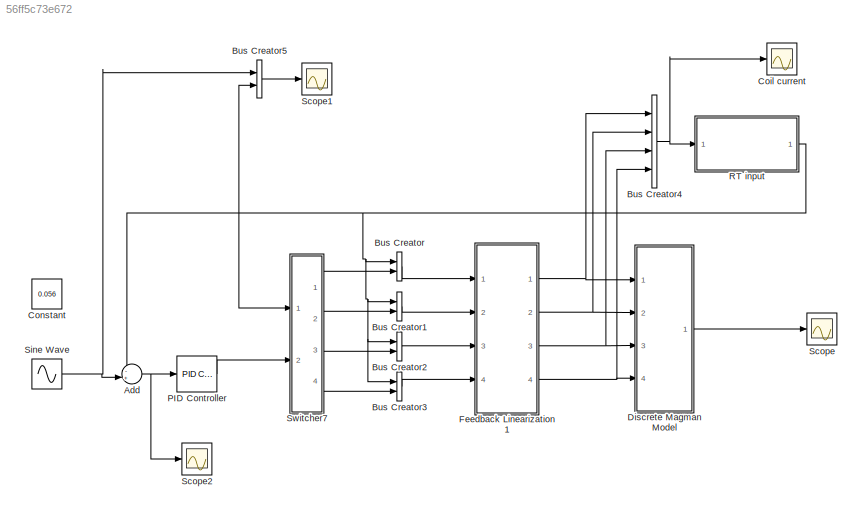
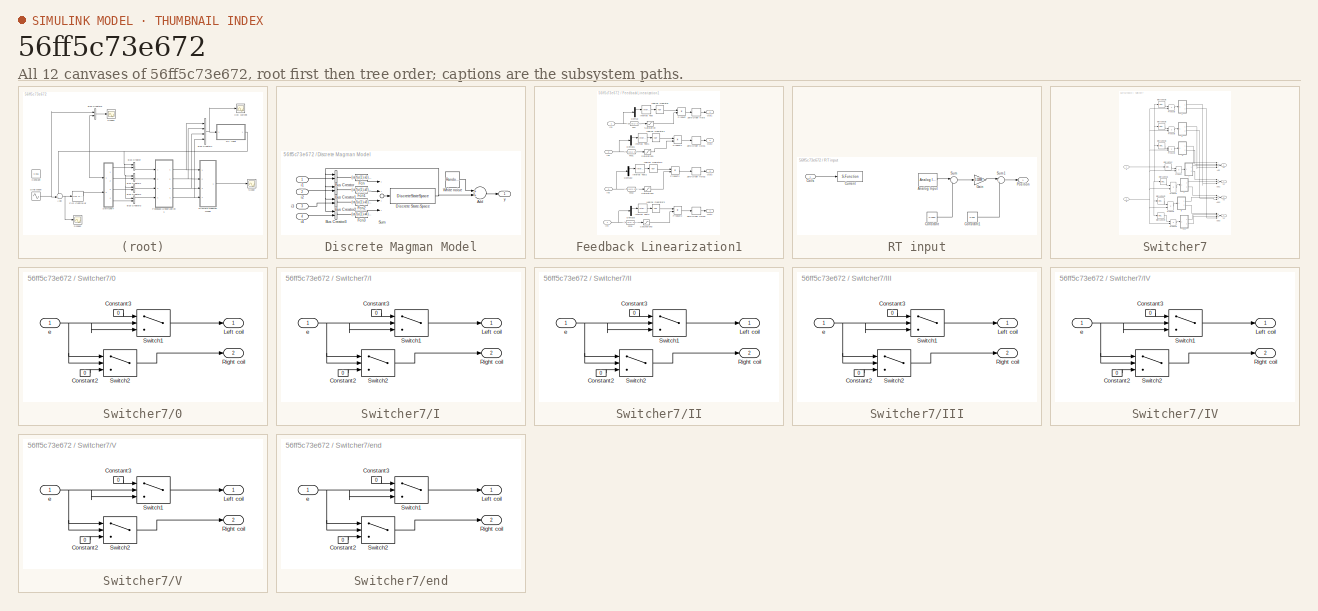
[diagram: thumbnail index - all 12 canvases of the model, root first then tree order]
MODEL slx_56ff5c73e672
KIND model
CONFIG AbsTol = auto
CONFIG EnableMultiTasking = off
CONFIG FixedStep = auto
CONFIG MaxStep = auto
CONFIG MinStep = auto
CONFIG RelTol = 1e-3
CONFIG SampleTimeConstraint = Unconstrained
CONFIG Solver = VariableStepAuto
CONFIG SolverName = VariableStepAuto
CONFIG StartTime = 0.0
CONFIG StopTime = 60
BLOCK [Sum] Add
  IconShape = round
  InputSameDT = off
  Inputs = -+|
  OutDataTypeStr = Inherit: Inherit via internal rule
  Ports = [2, 1]
  SaturateOnIntegerOverflow = off
BLOCK [BusCreator] Bus Creator
  DisplayOption = bar
  InheritFromInputs = on
  Inputs = 2
  Ports = [2, 1]
BLOCK [BusCreator] Bus Creator1
  DisplayOption = bar
  InheritFromInputs = on
  Inputs = 2
  Ports = [2, 1]
BLOCK [BusCreator] Bus Creator2
  DisplayOption = bar
  InheritFromInputs = on
  Inputs = 2
  Ports = [2, 1]
BLOCK [BusCreator] Bus Creator3
  DisplayOption = bar
  InheritFromInputs = on
  Inputs = 2
  Ports = [2, 1]
BLOCK [BusCreator] Bus Creator4
  DisplayOption = bar
  InheritFromInputs = on
  Inputs = 4
  Ports = [4, 1]
BLOCK [BusCreator] Bus Creator5
  DisplayOption = bar
  InheritFromInputs = on
  Inputs = 2
  Ports = [2, 1]
BLOCK [Scope] Coil current
  NumInputPorts = 1
  Ports = [1]
  ScopeSpecificationString = Simulink.scopes.TimeScopeBlockCfg('CurrentConfiguration', extmgr.ConfigurationSet(extmgr.Configuration('Core','General UI',true),extmgr.Configuration('Core','Source UI',true),extmgr.Configuration('Sources','WiredSimulink',true,'DataLoggingVariableName','ScopeData2'),extmgr.Configuration('Visuals','Time Domain',true,'SerializedDisplays',{struct('MinYLimReal','-0.05625','MaxYLimReal','0.50625','YLab...<+1455ch>
BLOCK [Constant] Constant
  Value = 0.056
BLOCK [SubSystem] Discrete Magman Model
  Ports = [4, 1]
  RequestExecContextInheritance = off
  Variant = off
BLOCK [Sum] Discrete Magman Model/Add
  InputSameDT = off
  OutDataTypeStr = Inherit: Inherit via internal rule
  Ports = [2, 1]
  SaturateOnIntegerOverflow = off
BLOCK [BusCreator] Discrete Magman Model/Bus Creator
  DisplayOption = bar
  InheritFromInputs = on
  Inputs = 2
  Ports = [2, 1]
BLOCK [BusCreator] Discrete Magman Model/Bus Creator1
  DisplayOption = bar
  InheritFromInputs = on
  Inputs = 2
  Ports = [2, 1]
BLOCK [BusCreator] Discrete Magman Model/Bus Creator2
  DisplayOption = bar
  InheritFromInputs = on
  Inputs = 2
  Ports = [2, 1]
BLOCK [BusCreator] Discrete Magman Model/Bus Creator3
  DisplayOption = bar
  InheritFromInputs = on
  Inputs = 2
  Ports = [2, 1]
BLOCK [DiscreteStateSpace] Discrete Magman Model/Discrete State-Space
  A = Ad
  B = Bd
  C = Cd
  D = Dd
  SampleTime = h
BLOCK [Fcn] Discrete Magman Model/Fcn
  Expr = (-a*(u(1)-x1)/(((u(1)-x1)^2+b)^3))*(u(2))
BLOCK [Fcn] Discrete Magman Model/Fcn1
  Expr = (-a*(u(1)-x2)/(((u(1)-x2)^2+b)^3))*(u(2))
BLOCK [Fcn] Discrete Magman Model/Fcn2
  Expr = (-a*(u(1)-x3)/(((u(1)-x3)^2+b)^3))*(u(2))
BLOCK [Fcn] Discrete Magman Model/Fcn3
  Expr = (-a*(u(1)-x4)/(((u(1)-x4)^2+b)^3))*(u(2))
BLOCK [Sum] Discrete Magman Model/Sum
  InputSameDT = off
  Inputs = ++++
  OutDataTypeStr = Inherit: Inherit via internal rule
  Ports = [4, 1]
  SaturateOnIntegerOverflow = off
BLOCK [Reference] Discrete Magman Model/White noise  REF=dspsrcs4/Random
Source
  Ports = [0, 1]
  SourceBlock = dspsrcs4/Random\nSource
  SourceType = Random Source
  UserDataPersistent = on
BLOCK [Inport] Discrete Magman Model/i1
  IconDisplay = Port number
BLOCK [Inport] Discrete Magman Model/i2
  IconDisplay = Port number
  Port = 2
BLOCK [Inport] Discrete Magman Model/i3
  IconDisplay = Port number
  Port = 3
BLOCK [Inport] Discrete Magman Model/i4
  IconDisplay = Port number
  Port = 4
BLOCK [Outport] Discrete Magman Model/y
  IconDisplay = Port number
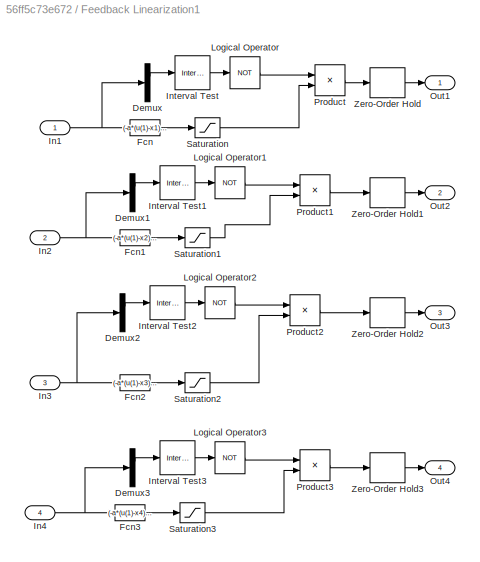
BLOCK [SubSystem] Feedback Linearization1
  Ports = [4, 4]
  RequestExecContextInheritance = off
  Variant = off
BLOCK [Demux] Feedback Linearization1/Demux
  DisplayOption = bar
  Outputs = 2
  Ports = [1, 2]
BLOCK [Demux] Feedback Linearization1/Demux1
  DisplayOption = bar
  Outputs = 2
  Ports = [1, 2]
BLOCK [Demux] Feedback Linearization1/Demux2
  DisplayOption = bar
  Outputs = 2
  Ports = [1, 2]
BLOCK [Demux] Feedback Linearization1/Demux3
  DisplayOption = bar
  Outputs = 2
  Ports = [1, 2]
BLOCK [Fcn] Feedback Linearization1/Fcn
  Expr = (-a*(u(1)-x1)/(((u(1)-x1)^2+b)^3))^(-1)*(u(2))
BLOCK [Fcn] Feedback Linearization1/Fcn1
  Expr = (-a*(u(1)-x2)/(((u(1)-x2)^2+b)^3))^(-1)*(u(2))
BLOCK [Fcn] Feedback Linearization1/Fcn2
  Expr = (-a*(u(1)-x3)/(((u(1)-x3)^2+b)^3))^(-1)*(u(2))
BLOCK [Fcn] Feedback Linearization1/Fcn3
  Expr = (-a*(u(1)-x4)/(((u(1)-x4)^2+b)^3))^(-1)*(u(2))
BLOCK [Inport] Feedback Linearization1/In1
  IconDisplay = Port number
BLOCK [Inport] Feedback Linearization1/In2
  IconDisplay = Port number
  Port = 2
BLOCK [Inport] Feedback Linearization1/In3
  IconDisplay = Port number
  Port = 3
BLOCK [Inport] Feedback Linearization1/In4
  IconDisplay = Port number
  Port = 4
BLOCK [Reference] Feedback Linearization1/Interval Test  REF=simulink/Logic and Bit
Operations/Interval Test
  Ports = [1, 1]
  SourceBlock = simulink/Logic and Bit\nOperations/Interval Test
  SourceType = Interval Test
BLOCK [Reference] Feedback Linearization1/Interval Test1  REF=simulink/Logic and Bit
Operations/Interval Test
  Ports = [1, 1]
  SourceBlock = simulink/Logic and Bit\nOperations/Interval Test
  SourceType = Interval Test
BLOCK [Reference] Feedback Linearization1/Interval Test2  REF=simulink/Logic and Bit
Operations/Interval Test
  Ports = [1, 1]
  SourceBlock = simulink/Logic and Bit\nOperations/Interval Test
  SourceType = Interval Test
BLOCK [Reference] Feedback Linearization1/Interval Test3  REF=simulink/Logic and Bit
Operations/Interval Test
  Ports = [1, 1]
  SourceBlock = simulink/Logic and Bit\nOperations/Interval Test
  SourceType = Interval Test
BLOCK [Logic] Feedback Linearization1/Logical Operator
  AllPortsSameDT = off
  Operator = NOT
  OutDataTypeStr = boolean
  Ports = [1, 1]
BLOCK [Logic] Feedback Linearization1/Logical Operator1
  AllPortsSameDT = off
  Operator = NOT
  OutDataTypeStr = boolean
  Ports = [1, 1]
BLOCK [Logic] Feedback Linearization1/Logical Operator2
  AllPortsSameDT = off
  Operator = NOT
  OutDataTypeStr = boolean
  Ports = [1, 1]
BLOCK [Logic] Feedback Linearization1/Logical Operator3
  AllPortsSameDT = off
  Operator = NOT
  OutDataTypeStr = boolean
  Ports = [1, 1]
BLOCK [Outport] Feedback Linearization1/Out1
  IconDisplay = Port number
BLOCK [Outport] Feedback Linearization1/Out2
  IconDisplay = Port number
  Port = 2
BLOCK [Outport] Feedback Linearization1/Out3
  IconDisplay = Port number
  Port = 3
BLOCK [Outport] Feedback Linearization1/Out4
  IconDisplay = Port number
  Port = 4
BLOCK [Product] Feedback Linearization1/Product
  InputSameDT = off
  OutDataTypeStr = Inherit: Inherit via internal rule
  Ports = [2, 1]
  RndMeth = Floor
  SaturateOnIntegerOverflow = off
BLOCK [Product] Feedback Linearization1/Product1
  InputSameDT = off
  OutDataTypeStr = Inherit: Inherit via internal rule
  Ports = [2, 1]
  RndMeth = Floor
  SaturateOnIntegerOverflow = off
BLOCK [Product] Feedback Linearization1/Product2
  InputSameDT = off
  OutDataTypeStr = Inherit: Inherit via internal rule
  Ports = [2, 1]
  RndMeth = Floor
  SaturateOnIntegerOverflow = off
BLOCK [Product] Feedback Linearization1/Product3
  InputSameDT = off
  OutDataTypeStr = Inherit: Inherit via internal rule
  Ports = [2, 1]
  RndMeth = Floor
  SaturateOnIntegerOverflow = off
BLOCK [Saturate] Feedback Linearization1/Saturation
  InputPortMap = u0
  LowerLimit = 0
  Ports = [1, 1]
  UpperLimit = 0.45
BLOCK [Saturate] Feedback Linearization1/Saturation1
  InputPortMap = u0
  LowerLimit = 0
  Ports = [1, 1]
  UpperLimit = 0.45
BLOCK [Saturate] Feedback Linearization1/Saturation2
  InputPortMap = u0
  LowerLimit = 0
  Ports = [1, 1]
  UpperLimit = 0.45
BLOCK [Saturate] Feedback Linearization1/Saturation3
  InputPortMap = u0
  LowerLimit = 0
  Ports = [1, 1]
  UpperLimit = 0.45
BLOCK [ZeroOrderHold] Feedback Linearization1/Zero-Order Hold
  SampleTime = -1
BLOCK [ZeroOrderHold] Feedback Linearization1/Zero-Order Hold1
  SampleTime = -1
BLOCK [ZeroOrderHold] Feedback Linearization1/Zero-Order Hold2
  SampleTime = -1
BLOCK [ZeroOrderHold] Feedback Linearization1/Zero-Order Hold3
  SampleTime = -1
BLOCK [Reference] PID Controller  REF=simulink/Continuous/PID Controller
  Ports = [1, 1]
  SourceBlock = simulink/Continuous/PID Controller
  SourceType = PID 1dof
BLOCK [SubSystem] RT input
  Ports = [1, 1]
  RequestExecContextInheritance = off
  Variant = off
BLOCK [Reference] RT input/Analog Input  REF=sldrtlib/Analog Input
  AttributesFormatString = Humusoft\nMF634 [auto]
  Ports = [0, 1]
  SourceBlock = sldrtlib/Analog Input
  SourceType = Simulink Desktop Real-Time Analog Input
BLOCK [Inport] RT input/Coils
  IconDisplay = Port number
BLOCK [Constant] RT input/Constant
  Value = -0.1890
BLOCK [Constant] RT input/Constant1
  Value = 0.025
BLOCK [S-Function] RT input/Current
  EnableBusSupport = off
  FunctionName = sfserialout
  Parameters = h, com
  Ports = [1]
  SFcnIsStateOwnerBlock = off
  SFunctionDeploymentMode = off
BLOCK [Gain] RT input/Gain
  Gain = 0.11898
  OutDataTypeStr = Inherit: Inherit via internal rule
  ParamDataTypeStr = Inherit: Inherit via internal rule
  SaturateOnIntegerOverflow = off
BLOCK [Outport] RT input/Position
  IconDisplay = Port number
BLOCK [Sum] RT input/Sum
  IconShape = round
  InputSameDT = off
  Inputs = |++
  OutDataTypeStr = Inherit: Inherit via internal rule
  Ports = [2, 1]
  SaturateOnIntegerOverflow = off
BLOCK [Sum] RT input/Sum1
  IconShape = round
  InputSameDT = off
  Inputs = |++
  OutDataTypeStr = Inherit: Inherit via internal rule
  Ports = [2, 1]
  SaturateOnIntegerOverflow = off
BLOCK [Scope] Scope
  NumInputPorts = 1
  Ports = [1]
  ScopeSpecificationString = Simulink.scopes.TimeScopeBlockCfg('CurrentConfiguration', extmgr.ConfigurationSet(extmgr.Configuration('Core','General UI',true),extmgr.Configuration('Core','Source UI',true),extmgr.Configuration('Sources','WiredSimulink',true),extmgr.Configuration('Visuals','Time Domain',true,'SerializedDisplays',{struct('MinYLimReal','-0.01068','MaxYLimReal','0.09488','YLabelReal','','MinYLimMag','0.00000','MaxY...<+1395ch>
BLOCK [Scope] Scope1
  NumInputPorts = 1
  Ports = [1]
  ScopeSpecificationString = Simulink.scopes.TimeScopeBlockCfg('CurrentConfiguration', extmgr.ConfigurationSet(extmgr.Configuration('Core','General UI',true),extmgr.Configuration('Core','Source UI',true),extmgr.Configuration('Sources','WiredSimulink',true,'DataLoggingVariableName','ScopeData1'),extmgr.Configuration('Visuals','Time Domain',true,'SerializedDisplays',{struct('MinYLimReal','-0.00951','MaxYLimReal','0.13603','YLab...<+1457ch>
BLOCK [Scope] Scope2
  NumInputPorts = 1
  Ports = [1]
  ScopeSpecificationString = Simulink.scopes.TimeScopeBlockCfg('CurrentConfiguration', extmgr.ConfigurationSet(extmgr.Configuration('Core','General UI',true),extmgr.Configuration('Core','Source UI',true),extmgr.Configuration('Sources','WiredSimulink',true,'DataLoggingVariableName','ScopeData1'),extmgr.Configuration('Visuals','Time Domain',true,'SerializedDisplays',{struct('MinYLimReal','-0.0414','MaxYLimReal','0.08409','YLabe...<+1383ch>
BLOCK [Sin] Sine Wave
  Amplitude = 0.032
  Bias = 0.063
  Frequency = 1.2
  Ports = [0, 1]
  SampleTime = 0
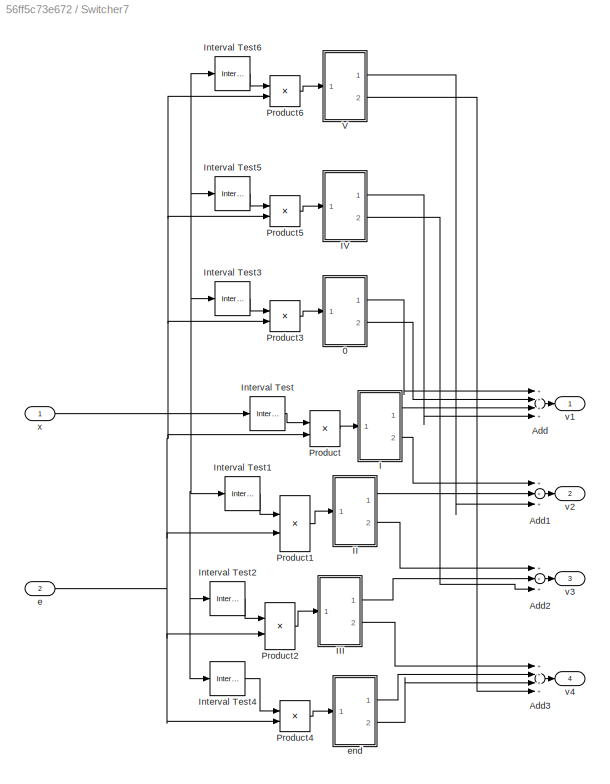
BLOCK [SubSystem] Switcher7
  Ports = [2, 4]
  RequestExecContextInheritance = off
  Variant = off
BLOCK [SubSystem] Switcher7/0
  Ports = [1, 2]
  RequestExecContextInheritance = off
  Variant = off
BLOCK [Constant] Switcher7/0/Constant2
  Value = 0
BLOCK [Constant] Switcher7/0/Constant3
  Value = 0
BLOCK [Outport] Switcher7/0/Left coil
  IconDisplay = Port number
BLOCK [Outport] Switcher7/0/Right coil
  IconDisplay = Port number
  Port = 2
BLOCK [Switch] Switcher7/0/Switch1
  Criteria = u2 > Threshold
  InputSameDT = off
  SaturateOnIntegerOverflow = off
BLOCK [Switch] Switcher7/0/Switch2
  Criteria = u2 > Threshold
  InputSameDT = off
  SaturateOnIntegerOverflow = off
BLOCK [Inport] Switcher7/0/e
  IconDisplay = Port number
BLOCK [Sum] Switcher7/Add
  InputSameDT = off
  Inputs = ++++
  OutDataTypeStr = Inherit: Inherit via internal rule
  Ports = [4, 1]
  SaturateOnIntegerOverflow = off
BLOCK [Sum] Switcher7/Add1
  InputSameDT = off
  Inputs = +++
  OutDataTypeStr = Inherit: Inherit via internal rule
  Ports = [3, 1]
  SaturateOnIntegerOverflow = off
BLOCK [Sum] Switcher7/Add2
  InputSameDT = off
  Inputs = +++
  OutDataTypeStr = Inherit: Inherit via internal rule
  Ports = [3, 1]
  SaturateOnIntegerOverflow = off
BLOCK [Sum] Switcher7/Add3
  InputSameDT = off
  Inputs = ++++
  OutDataTypeStr = Inherit: Inherit via internal rule
  Ports = [4, 1]
  SaturateOnIntegerOverflow = off
BLOCK [SubSystem] Switcher7/I
  Ports = [1, 2]
  RequestExecContextInheritance = off
  Variant = off
BLOCK [Constant] Switcher7/I/Constant2
  Value = 0
BLOCK [Constant] Switcher7/I/Constant3
  Value = 0
BLOCK [Outport] Switcher7/I/Left coil
  IconDisplay = Port number
BLOCK [Outport] Switcher7/I/Right coil
  IconDisplay = Port number
  Port = 2
BLOCK [Switch] Switcher7/I/Switch1
  Criteria = u2 > Threshold
  InputSameDT = off
  SaturateOnIntegerOverflow = off
BLOCK [Switch] Switcher7/I/Switch2
  Criteria = u2 > Threshold
  InputSameDT = off
  SaturateOnIntegerOverflow = off
BLOCK [Inport] Switcher7/I/e
  IconDisplay = Port number
BLOCK [SubSystem] Switcher7/II
  Ports = [1, 2]
  RequestExecContextInheritance = off
  Variant = off
BLOCK [Constant] Switcher7/II/Constant2
  Value = 0
BLOCK [Constant] Switcher7/II/Constant3
  Value = 0
BLOCK [Outport] Switcher7/II/Left coil
  IconDisplay = Port number
BLOCK [Outport] Switcher7/II/Right coil
  IconDisplay = Port number
  Port = 2
BLOCK [Switch] Switcher7/II/Switch1
  Criteria = u2 > Threshold
  InputSameDT = off
  SaturateOnIntegerOverflow = off
BLOCK [Switch] Switcher7/II/Switch2
  Criteria = u2 > Threshold
  InputSameDT = off
  SaturateOnIntegerOverflow = off
BLOCK [Inport] Switcher7/II/e
  IconDisplay = Port number
BLOCK [SubSystem] Switcher7/III
  Ports = [1, 2]
  RequestExecContextInheritance = off
  Variant = off
BLOCK [Constant] Switcher7/III/Constant2
  Value = 0
BLOCK [Constant] Switcher7/III/Constant3
  Value = 0
BLOCK [Outport] Switcher7/III/Left coil
  IconDisplay = Port number
BLOCK [Outport] Switcher7/III/Right coil
  IconDisplay = Port number
  Port = 2
BLOCK [Switch] Switcher7/III/Switch1
  Criteria = u2 > Threshold
  InputSameDT = off
  SaturateOnIntegerOverflow = off
BLOCK [Switch] Switcher7/III/Switch2
  Criteria = u2 > Threshold
  InputSameDT = off
  SaturateOnIntegerOverflow = off
BLOCK [Inport] Switcher7/III/e
  IconDisplay = Port number
BLOCK [SubSystem] Switcher7/IV
  Ports = [1, 2]
  RequestExecContextInheritance = off
  Variant = off
BLOCK [Constant] Switcher7/IV/Constant2
  Value = 0
BLOCK [Constant] Switcher7/IV/Constant3
  Value = 0
BLOCK [Outport] Switcher7/IV/Left coil
  IconDisplay = Port number
BLOCK [Outport] Switcher7/IV/Right coil
  IconDisplay = Port number
  Port = 2
BLOCK [Switch] Switcher7/IV/Switch1
  Criteria = u2 > Threshold
  InputSameDT = off
  SaturateOnIntegerOverflow = off
BLOCK [Switch] Switcher7/IV/Switch2
  Criteria = u2 > Threshold
  InputSameDT = off
  SaturateOnIntegerOverflow = off
BLOCK [Inport] Switcher7/IV/e
  IconDisplay = Port number
BLOCK [Reference] Switcher7/Interval Test  REF=simulink/Logic and Bit
Operations/Interval Test
  Ports = [1, 1]
  SourceBlock = simulink/Logic and Bit\nOperations/Interval Test
  SourceType = Interval Test
BLOCK [Reference] Switcher7/Interval Test1  REF=simulink/Logic and Bit
Operations/Interval Test
  Ports = [1, 1]
  SourceBlock = simulink/Logic and Bit\nOperations/Interval Test
  SourceType = Interval Test
BLOCK [Reference] Switcher7/Interval Test2  REF=simulink/Logic and Bit
Operations/Interval Test
  Ports = [1, 1]
  SourceBlock = simulink/Logic and Bit\nOperations/Interval Test
  SourceType = Interval Test
BLOCK [Reference] Switcher7/Interval Test3  REF=simulink/Logic and Bit
Operations/Interval Test
  Ports = [1, 1]
  SourceBlock = simulink/Logic and Bit\nOperations/Interval Test
  SourceType = Interval Test
BLOCK [Reference] Switcher7/Interval Test4  REF=simulink/Logic and Bit
Operations/Interval Test
  Ports = [1, 1]
  SourceBlock = simulink/Logic and Bit\nOperations/Interval Test
  SourceType = Interval Test
BLOCK [Reference] Switcher7/Interval Test5  REF=simulink/Logic and Bit
Operations/Interval Test
  Ports = [1, 1]
  SourceBlock = simulink/Logic and Bit\nOperations/Interval Test
  SourceType = Interval Test
BLOCK [Reference] Switcher7/Interval Test6  REF=simulink/Logic and Bit
Operations/Interval Test
  Ports = [1, 1]
  SourceBlock = simulink/Logic and Bit\nOperations/Interval Test
  SourceType = Interval Test
BLOCK [Product] Switcher7/Product
  InputSameDT = off
  OutDataTypeStr = Inherit: Inherit via internal rule
  Ports = [2, 1]
  RndMeth = Floor
  SaturateOnIntegerOverflow = off
BLOCK [Product] Switcher7/Product1
  InputSameDT = off
  OutDataTypeStr = Inherit: Inherit via internal rule
  Ports = [2, 1]
  RndMeth = Floor
  SaturateOnIntegerOverflow = off
BLOCK [Product] Switcher7/Product2
  InputSameDT = off
  OutDataTypeStr = Inherit: Inherit via internal rule
  Ports = [2, 1]
  RndMeth = Floor
  SaturateOnIntegerOverflow = off
BLOCK [Product] Switcher7/Product3
  InputSameDT = off
  OutDataTypeStr = Inherit: Inherit via internal rule
  Ports = [2, 1]
  RndMeth = Floor
  SaturateOnIntegerOverflow = off
BLOCK [Product] Switcher7/Product4
  InputSameDT = off
  OutDataTypeStr = Inherit: Inherit via internal rule
  Ports = [2, 1]
  RndMeth = Floor
  SaturateOnIntegerOverflow = off
BLOCK [Product] Switcher7/Product5
  InputSameDT = off
  OutDataTypeStr = Inherit: Inherit via internal rule
  Ports = [2, 1]
  RndMeth = Floor
  SaturateOnIntegerOverflow = off
BLOCK [Product] Switcher7/Product6
  InputSameDT = off
  OutDataTypeStr = Inherit: Inherit via internal rule
  Ports = [2, 1]
  RndMeth = Floor
  SaturateOnIntegerOverflow = off
BLOCK [SubSystem] Switcher7/V
  Ports = [1, 2]
  RequestExecContextInheritance = off
  Variant = off
BLOCK [Constant] Switcher7/V/Constant2
  Value = 0
BLOCK [Constant] Switcher7/V/Constant3
  Value = 0
BLOCK [Outport] Switcher7/V/Left coil
  IconDisplay = Port number
BLOCK [Outport] Switcher7/V/Right coil
  IconDisplay = Port number
  Port = 2
BLOCK [Switch] Switcher7/V/Switch1
  Criteria = u2 > Threshold
  InputSameDT = off
  SaturateOnIntegerOverflow = off
BLOCK [Switch] Switcher7/V/Switch2
  Criteria = u2 > Threshold
  InputSameDT = off
  SaturateOnIntegerOverflow = off
BLOCK [Inport] Switcher7/V/e
  IconDisplay = Port number
BLOCK [Inport] Switcher7/e
  IconDisplay = Port number
  Port = 2
BLOCK [SubSystem] Switcher7/end
  Ports = [1, 2]
  RequestExecContextInheritance = off
  Variant = off
BLOCK [Constant] Switcher7/end/Constant2
  Value = 0
BLOCK [Constant] Switcher7/end/Constant3
  Value = 0
BLOCK [Outport] Switcher7/end/Left coil
  IconDisplay = Port number
BLOCK [Outport] Switcher7/end/Right coil
  IconDisplay = Port number
  Port = 2
BLOCK [Switch] Switcher7/end/Switch1
  Criteria = u2 > Threshold
  InputSameDT = off
  SaturateOnIntegerOverflow = off
BLOCK [Switch] Switcher7/end/Switch2
  Criteria = u2 > Threshold
  InputSameDT = off
  SaturateOnIntegerOverflow = off
BLOCK [Inport] Switcher7/end/e
  IconDisplay = Port number
BLOCK [Outport] Switcher7/v1
  IconDisplay = Port number
BLOCK [Outport] Switcher7/v2
  IconDisplay = Port number
  Port = 2
BLOCK [Outport] Switcher7/v3
  IconDisplay = Port number
  Port = 3
BLOCK [Outport] Switcher7/v4
  IconDisplay = Port number
  Port = 4
BLOCK [Inport] Switcher7/x
  IconDisplay = Port number
NET Add:1 -> PID Controller:1, Scope2:1
LINE Bus Creator1:1 -> Feedback Linearization1:2
LINE Bus Creator2:1 -> Feedback Linearization1:3
LINE Bus Creator3:1 -> Feedback Linearization1:4
NET Bus Creator4:1 -> Coil current:1, RT input:1
LINE Bus Creator5:1 -> Scope1:1
LINE Bus Creator:1 -> Feedback Linearization1:1
LINE Discrete Magman Model/Add:1 -> Discrete Magman Model/y:1
LINE Discrete Magman Model/Bus Creator1:1 -> Discrete Magman Model/Fcn1:1
LINE Discrete Magman Model/Bus Creator2:1 -> Discrete Magman Model/Fcn2:1
LINE Discrete Magman Model/Bus Creator3:1 -> Discrete Magman Model/Fcn3:1
LINE Discrete Magman Model/Bus Creator:1 -> Discrete Magman Model/Fcn:1
NET Discrete Magman Model/Discrete State-Space:1 -> Discrete Magman Model/Add:2, Discrete Magman Model/Bus Creator1:1, Discrete Magman Model/Bus Creator2:1, Discrete Magman Model/Bus Creator3:1, Discrete Magman Model/Bus Creator:1
LINE Discrete Magman Model/Fcn1:1 -> Discrete Magman Model/Sum:2
LINE Discrete Magman Model/Fcn2:1 -> Discrete Magman Model/Sum:3
LINE Discrete Magman Model/Fcn3:1 -> Discrete Magman Model/Sum:4
LINE Discrete Magman Model/Fcn:1 -> Discrete Magman Model/Sum:1
LINE Discrete Magman Model/Sum:1 -> Discrete Magman Model/Discrete State-Space:1
LINE Discrete Magman Model/White noise:1 -> Discrete Magman Model/Add:1
LINE Discrete Magman Model/i1:1 -> Discrete Magman Model/Bus Creator:2
LINE Discrete Magman Model/i2:1 -> Discrete Magman Model/Bus Creator1:2
LINE Discrete Magman Model/i3:1 -> Discrete Magman Model/Bus Creator2:2
LINE Discrete Magman Model/i4:1 -> Discrete Magman Model/Bus Creator3:2
LINE Discrete Magman Model:1 -> Scope:1
LINE Feedback Linearization1/Demux1:1 -> Feedback Linearization1/Interval Test1:1
LINE Feedback Linearization1/Demux2:1 -> Feedback Linearization1/Interval Test2:1
LINE Feedback Linearization1/Demux3:1 -> Feedback Linearization1/Interval Test3:1
LINE Feedback Linearization1/Demux:1 -> Feedback Linearization1/Interval Test:1
LINE Feedback Linearization1/Fcn1:1 -> Feedback Linearization1/Saturation1:1
LINE Feedback Linearization1/Fcn2:1 -> Feedback Linearization1/Saturation2:1
LINE Feedback Linearization1/Fcn3:1 -> Feedback Linearization1/Saturation3:1
LINE Feedback Linearization1/Fcn:1 -> Feedback Linearization1/Saturation:1
NET Feedback Linearization1/In1:1 -> Feedback Linearization1/Demux:1, Feedback Linearization1/Fcn:1
NET Feedback Linearization1/In2:1 -> Feedback Linearization1/Demux1:1, Feedback Linearization1/Fcn1:1
NET Feedback Linearization1/In3:1 -> Feedback Linearization1/Demux2:1, Feedback Linearization1/Fcn2:1
NET Feedback Linearization1/In4:1 -> Feedback Linearization1/Demux3:1, Feedback Linearization1/Fcn3:1
LINE Feedback Linearization1/Interval Test1:1 -> Feedback Linearization1/Logical Operator1:1
LINE Feedback Linearization1/Interval Test2:1 -> Feedback Linearization1/Logical Operator2:1
LINE Feedback Linearization1/Interval Test3:1 -> Feedback Linearization1/Logical Operator3:1
LINE Feedback Linearization1/Interval Test:1 -> Feedback Linearization1/Logical Operator:1
LINE Feedback Linearization1/Logical Operator1:1 -> Feedback Linearization1/Product1:1
LINE Feedback Linearization1/Logical Operator2:1 -> Feedback Linearization1/Product2:1
LINE Feedback Linearization1/Logical Operator3:1 -> Feedback Linearization1/Product3:1
LINE Feedback Linearization1/Logical Operator:1 -> Feedback Linearization1/Product:1
LINE Feedback Linearization1/Product1:1 -> Feedback Linearization1/Zero-Order Hold1:1
LINE Feedback Linearization1/Product2:1 -> Feedback Linearization1/Zero-Order Hold2:1
LINE Feedback Linearization1/Product3:1 -> Feedback Linearization1/Zero-Order Hold3:1
LINE Feedback Linearization1/Product:1 -> Feedback Linearization1/Zero-Order Hold:1
LINE Feedback Linearization1/Saturation1:1 -> Feedback Linearization1/Product1:2
LINE Feedback Linearization1/Saturation2:1 -> Feedback Linearization1/Product2:2
LINE Feedback Linearization1/Saturation3:1 -> Feedback Linearization1/Product3:2
LINE Feedback Linearization1/Saturation:1 -> Feedback Linearization1/Product:2
LINE Feedback Linearization1/Zero-Order Hold1:1 -> Feedback Linearization1/Out2:1
LINE Feedback Linearization1/Zero-Order Hold2:1 -> Feedback Linearization1/Out3:1
LINE Feedback Linearization1/Zero-Order Hold3:1 -> Feedback Linearization1/Out4:1
LINE Feedback Linearization1/Zero-Order Hold:1 -> Feedback Linearization1/Out1:1
NET Feedback Linearization1:1 -> Bus Creator4:1, Discrete Magman Model:1
NET Feedback Linearization1:2 -> Bus Creator4:2, Discrete Magman Model:2
NET Feedback Linearization1:3 -> Bus Creator4:3, Discrete Magman Model:3
NET Feedback Linearization1:4 -> Bus Creator4:4, Discrete Magman Model:4
LINE PID Controller:1 -> Switcher7:2
LINE RT input/Analog Input:1 -> RT input/Sum:1
LINE RT input/Coils:1 -> RT input/Current:1
LINE RT input/Constant1:1 -> RT input/Sum1:2
LINE RT input/Constant:1 -> RT input/Sum:2
LINE RT input/Gain:1 -> RT input/Sum1:1
LINE RT input/Sum1:1 -> RT input/Position:1
LINE RT input/Sum:1 -> RT input/Gain:1
NET RT input:1 -> Add:1, Bus Creator1:1, Bus Creator2:1, Bus Creator3:1, Bus Creator5:2, Bus Creator:1, Switcher7:1
NET Sine Wave:1 -> Add:2, Bus Creator5:1
LINE Switcher7/0/Constant2:1 -> Switcher7/0/Switch2:3
LINE Switcher7/0/Constant3:1 -> Switcher7/0/Switch1:1
LINE Switcher7/0/Switch1:1 -> Switcher7/0/Left coil:1
LINE Switcher7/0/Switch2:1 -> Switcher7/0/Right coil:1
NET Switcher7/0/e:1 -> Switcher7/0/Switch1:2, Switcher7/0/Switch1:3, Switcher7/0/Switch2:1, Switcher7/0/Switch2:2
LINE Switcher7/0:1 -> Switcher7/Add:1
LINE Switcher7/0:2 -> Switcher7/Add:2
LINE Switcher7/Add1:1 -> Switcher7/v2:1
LINE Switcher7/Add2:1 -> Switcher7/v3:1
LINE Switcher7/Add3:1 -> Switcher7/v4:1
LINE Switcher7/Add:1 -> Switcher7/v1:1
LINE Switcher7/I/Constant2:1 -> Switcher7/I/Switch2:3
LINE Switcher7/I/Constant3:1 -> Switcher7/I/Switch1:1
LINE Switcher7/I/Switch1:1 -> Switcher7/I/Left coil:1
LINE Switcher7/I/Switch2:1 -> Switcher7/I/Right coil:1
NET Switcher7/I/e:1 -> Switcher7/I/Switch1:2, Switcher7/I/Switch1:3, Switcher7/I/Switch2:1, Switcher7/I/Switch2:2
LINE Switcher7/I:1 -> Switcher7/Add:3
LINE Switcher7/I:2 -> Switcher7/Add1:1
LINE Switcher7/II/Constant2:1 -> Switcher7/II/Switch2:3
LINE Switcher7/II/Constant3:1 -> Switcher7/II/Switch1:1
LINE Switcher7/II/Switch1:1 -> Switcher7/II/Left coil:1
LINE Switcher7/II/Switch2:1 -> Switcher7/II/Right coil:1
NET Switcher7/II/e:1 -> Switcher7/II/Switch1:2, Switcher7/II/Switch1:3, Switcher7/II/Switch2:1, Switcher7/II/Switch2:2
LINE Switcher7/II:1 -> Switcher7/Add1:2
LINE Switcher7/II:2 -> Switcher7/Add2:1
LINE Switcher7/III/Constant2:1 -> Switcher7/III/Switch2:3
LINE Switcher7/III/Constant3:1 -> Switcher7/III/Switch1:1
LINE Switcher7/III/Switch1:1 -> Switcher7/III/Left coil:1
LINE Switcher7/III/Switch2:1 -> Switcher7/III/Right coil:1
NET Switcher7/III/e:1 -> Switcher7/III/Switch1:2, Switcher7/III/Switch1:3, Switcher7/III/Switch2:1, Switcher7/III/Switch2:2
LINE Switcher7/III:1 -> Switcher7/Add2:2
LINE Switcher7/III:2 -> Switcher7/Add3:1
LINE Switcher7/IV/Constant2:1 -> Switcher7/IV/Switch2:3
LINE Switcher7/IV/Constant3:1 -> Switcher7/IV/Switch1:1
LINE Switcher7/IV/Switch1:1 -> Switcher7/IV/Left coil:1
LINE Switcher7/IV/Switch2:1 -> Switcher7/IV/Right coil:1
NET Switcher7/IV/e:1 -> Switcher7/IV/Switch1:2, Switcher7/IV/Switch1:3, Switcher7/IV/Switch2:1, Switcher7/IV/Switch2:2
LINE Switcher7/IV:1 -> Switcher7/Add:4
LINE Switcher7/IV:2 -> Switcher7/Add2:3
LINE Switcher7/Interval Test1:1 -> Switcher7/Product1:1
LINE Switcher7/Interval Test2:1 -> Switcher7/Product2:1
LINE Switcher7/Interval Test3:1 -> Switcher7/Product3:1
LINE Switcher7/Interval Test4:1 -> Switcher7/Product4:1
LINE Switcher7/Interval Test5:1 -> Switcher7/Product5:1
LINE Switcher7/Interval Test6:1 -> Switcher7/Product6:1
LINE Switcher7/Interval Test:1 -> Switcher7/Product:1
LINE Switcher7/Product1:1 -> Switcher7/II:1
LINE Switcher7/Product2:1 -> Switcher7/III:1
LINE Switcher7/Product3:1 -> Switcher7/0:1
LINE Switcher7/Product4:1 -> Switcher7/end:1
LINE Switcher7/Product5:1 -> Switcher7/IV:1
LINE Switcher7/Product6:1 -> Switcher7/V:1
LINE Switcher7/Product:1 -> Switcher7/I:1
LINE Switcher7/V/Constant2:1 -> Switcher7/V/Switch2:3
LINE Switcher7/V/Constant3:1 -> Switcher7/V/Switch1:1
LINE Switcher7/V/Switch1:1 -> Switcher7/V/Left coil:1
LINE Switcher7/V/Switch2:1 -> Switcher7/V/Right coil:1
NET Switcher7/V/e:1 -> Switcher7/V/Switch1:2, Switcher7/V/Switch1:3, Switcher7/V/Switch2:1, Switcher7/V/Switch2:2
LINE Switcher7/V:1 -> Switcher7/Add1:3
LINE Switcher7/V:2 -> Switcher7/Add3:4
NET Switcher7/e:1 -> Switcher7/Product1:2, Switcher7/Product2:2, Switcher7/Product3:2, Switcher7/Product4:2, Switcher7/Product5:2, Switcher7/Product6:2, Switcher7/Product:2
LINE Switcher7/end/Constant2:1 -> Switcher7/end/Switch2:3
LINE Switcher7/end/Constant3:1 -> Switcher7/end/Switch1:1
LINE Switcher7/end/Switch1:1 -> Switcher7/end/Left coil:1
LINE Switcher7/end/Switch2:1 -> Switcher7/end/Right coil:1
NET Switcher7/end/e:1 -> Switcher7/end/Switch1:2, Switcher7/end/Switch1:3, Switcher7/end/Switch2:1, Switcher7/end/Switch2:2
LINE Switcher7/end:1 -> Switcher7/Add3:2
LINE Switcher7/end:2 -> Switcher7/Add3:3
NET Switcher7/x:1 -> Switcher7/Interval Test1:1, Switcher7/Interval Test2:1, Switcher7/Interval Test3:1, Switcher7/Interval Test4:1, Switcher7/Interval Test5:1, Switcher7/Interval Test6:1, Switcher7/Interval Test:1
LINE Switcher7:1 -> Bus Creator:2
LINE Switcher7:2 -> Bus Creator1:2
LINE Switcher7:3 -> Bus Creator2:2
LINE Switcher7:4 -> Bus Creator3:2
note: NET lines group one-source signal fan-out (src -> all destinations, sorted); 1:1 wires keep LINE
